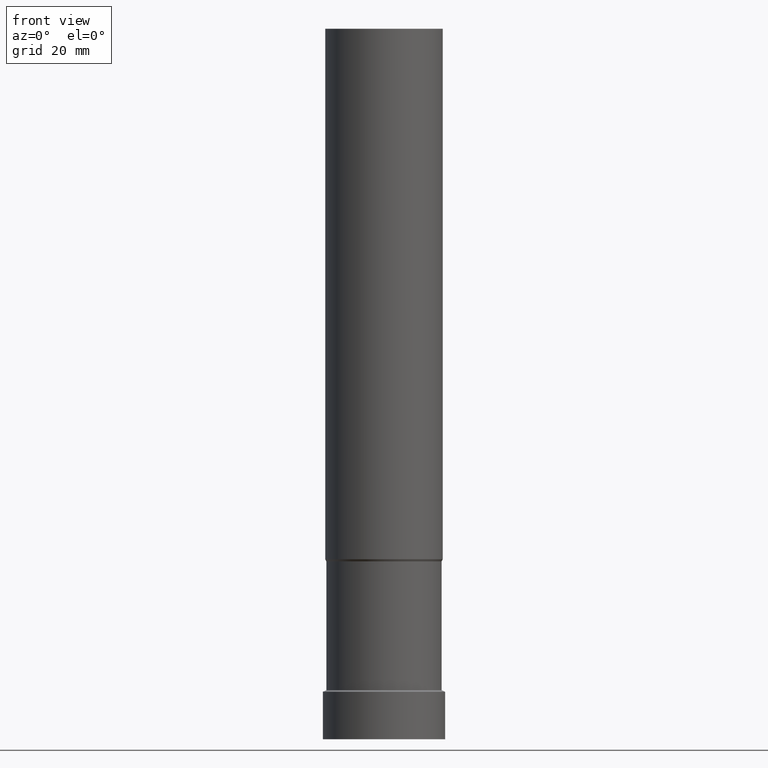
[diagram: clean part render]
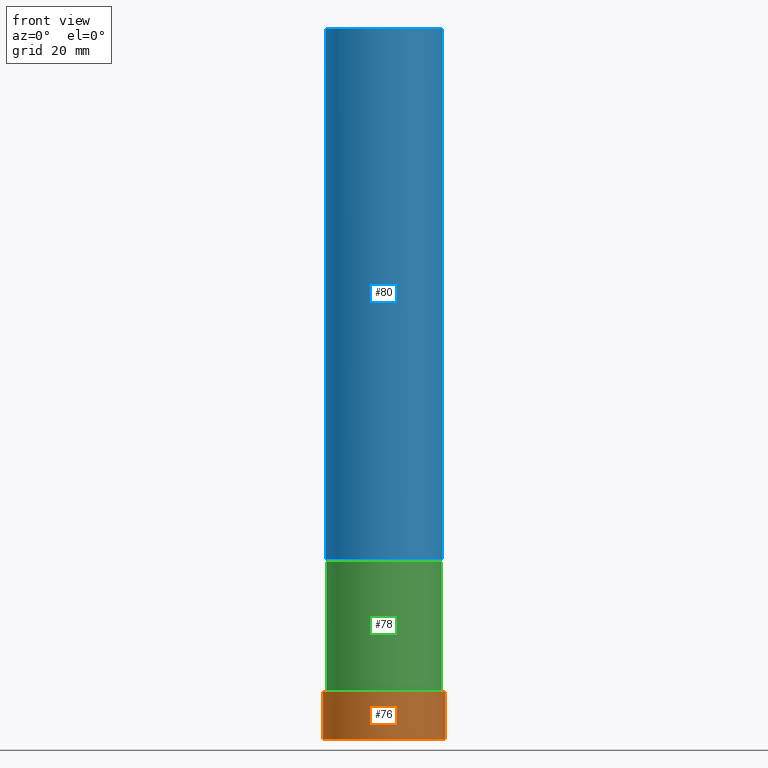
[diagram: same view with three faces highlighted in distinct colors, each labeled with its STEP entity id]
A machine part, front view with three faces highlighted in distinct colors.
Their STEP definitions:

[orange] entity #76 — the highlighted cylindrical surface (bore or boss wall) has radius 13 mm, axis along (0, 0, -1).
#76=ADVANCED_FACE('',(#85,#86),#87,.T.);
#85=FACE_BOUND('',#104,.T.);
#86=FACE_BOUND('',#105,.T.);
#87=CYLINDRICAL_SURFACE('',#106,13.0);
#104=EDGE_LOOP('',(#125));
#105=EDGE_LOOP('',(#126));
#106=AXIS2_PLACEMENT_3D('',#127,#128,#129);
#125=ORIENTED_EDGE('',*,*,#155,.F.);
#126=ORIENTED_EDGE('',*,*,#154,.T.);
#127=CARTESIAN_POINT('',(-3.07287843309052E-016,-1.34445489646158E-015,5.01839131940733));
#128=DIRECTION('',(6.12323399573677E-017,2.13490320940376E-016,-1.0));
#129=DIRECTION('',(-1.78996646401977E-032,1.0,2.13490320940376E-016));
#154=EDGE_CURVE('',#160,#160,#161,.T.);
#155=EDGE_CURVE('',#162,#162,#163,.T.);
#160=VERTEX_POINT('',#172);
#161=CIRCLE('',#173,13.0);
#162=VERTEX_POINT('',#174);
#163=CIRCLE('',#175,13.0);
#172=CARTESIAN_POINT('',(6.80187968177966E-030,13.0,-1.12107959161108E-013));
#173=AXIS2_PLACEMENT_3D('',#184,#185,#186);
#174=CARTESIAN_POINT('',(-6.14575686618112E-016,13.0,10.0367826388148));
#175=AXIS2_PLACEMENT_3D('',#187,#188,#189);
#184=CARTESIAN_POINT('',(6.96131109604808E-030,-2.73076923076891E-016,-1.13686837721616E-013));
#185=DIRECTION('',(-6.12323399573677E-017,-2.13490320940376E-016,1.0));
#186=DIRECTION('',(-1.78996646401977E-032,1.0,2.13490320940376E-016));
#187=CARTESIAN_POINT('',(-6.14575686618112E-016,-2.41583286984628E-015,10.0367826388148));
#188=DIRECTION('',(-6.12323399573677E-017,-2.13490320940376E-016,1.0));
#189=DIRECTION('',(-1.78996646401977E-032,1.0,2.13490320940376E-016));

[blue] entity #80 — the highlighted cylindrical surface (bore or boss wall) has radius 12.5 mm, axis along (0, 0, -1).
#80=ADVANCED_FACE('',(#97,#98),#99,.T.);
#97=FACE_BOUND('',#116,.T.);
#98=FACE_BOUND('',#117,.T.);
#99=CYLINDRICAL_SURFACE('',#118,12.5);
#116=EDGE_LOOP('',(#145));
#117=EDGE_LOOP('',(#146));
#118=AXIS2_PLACEMENT_3D('',#147,#148,#149);
#145=ORIENTED_EDGE('',*,*,#159,.F.);
#146=ORIENTED_EDGE('',*,*,#158,.T.);
#147=CARTESIAN_POINT('',(-5.75583995599255E-015,-2.03411670914722E-014,93.9999999999998));
#148=DIRECTION('',(6.12323399573676E-017,2.13490320940376E-016,-1.0));
#149=DIRECTION('',(-1.78996646401977E-032,1.0,2.13490320940376E-016));
#158=EDGE_CURVE('',#168,#168,#169,.T.);
#159=EDGE_CURVE('',#170,#170,#171,.T.);
#168=VERTEX_POINT('',#180);
#169=CIRCLE('',#181,12.5);
#170=VERTEX_POINT('',#182);
#171=CIRCLE('',#183,12.5);
#180=CARTESIAN_POINT('',(-2.32682891837994E-015,12.5,37.9999999999995));
#181=AXIS2_PLACEMENT_3D('',#196,#197,#198);
#182=CARTESIAN_POINT('',(-9.18485099360515E-015,12.5,150.0));
#183=AXIS2_PLACEMENT_3D('',#199,#200,#201);
#196=CARTESIAN_POINT('',(-2.32682891837994E-015,-8.38570911881112E-015,37.9999999999995));
#197=DIRECTION('',(-6.12323399573677E-017,-2.13490320940376E-016,1.0));
#198=DIRECTION('',(-1.78996646401977E-032,1.0,2.13490320940376E-016));
#199=CARTESIAN_POINT('',(-9.18485099360515E-015,-3.22966250641334E-014,150.0));
#200=DIRECTION('',(-6.12323399573676E-017,-2.13490320940376E-016,1.0));
#201=DIRECTION('',(-1.78996646401977E-032,1.0,2.13490320940376E-016));

[green] entity #78 — the highlighted cylindrical surface (bore or boss wall) has radius 12.25 mm, axis along (0, 0, -1).
#78=ADVANCED_FACE('',(#91,#92),#93,.T.);
#91=FACE_BOUND('',#110,.T.);
#92=FACE_BOUND('',#111,.T.);
#93=CYLINDRICAL_SURFACE('',#112,12.25);
#110=EDGE_LOOP('',(#135));
#111=EDGE_LOOP('',(#136));
#112=AXIS2_PLACEMENT_3D('',#137,#138,#139);
#135=ORIENTED_EDGE('',*,*,#157,.F.);
#136=ORIENTED_EDGE('',*,*,#156,.T.);
#137=CARTESIAN_POINT('',(-1.4673817118856E-015,-5.38919355083614E-015,23.9641619593052));
#138=DIRECTION('',(6.12323399573677E-017,2.13490320940376E-016,-1.0));
#139=DIRECTION('',(-1.78996646401977E-032,1.0,2.13490320940376E-016));
#156=EDGE_CURVE('',#164,#164,#165,.T.);
#157=EDGE_CURVE('',#166,#166,#167,.T.);
#164=VERTEX_POINT('',#176);
#165=CIRCLE('',#177,12.2499999999998);
#166=VERTEX_POINT('',#178);
#167=CIRCLE('',#179,12.2500000000003);
#176=CARTESIAN_POINT('',(-6.34448886359212E-016,12.2499999999998,10.3613366205005));
#177=AXIS2_PLACEMENT_3D('',#190,#191,#192);
#178=CARTESIAN_POINT('',(-2.30031453741198E-015,12.2500000000003,37.5669872981099));
#179=AXIS2_PLACEMENT_3D('',#193,#194,#195);
#190=CARTESIAN_POINT('',(-6.34448886359212E-016,-2.48512200355885E-015,10.3613366205005));
#191=DIRECTION('',(-6.12323399573676E-017,-2.13490320940376E-016,1.0));
#192=DIRECTION('',(-1.78996646401977E-032,1.0,2.13490320940376E-016));
#193=CARTESIAN_POINT('',(-2.30031453741198E-015,-8.29326509811344E-015,37.5669872981099));
#194=DIRECTION('',(-6.12323399573677E-017,-2.13490320940376E-016,1.0));
#195=DIRECTION('',(-1.78996646401977E-032,1.0,2.13490320940376E-016));